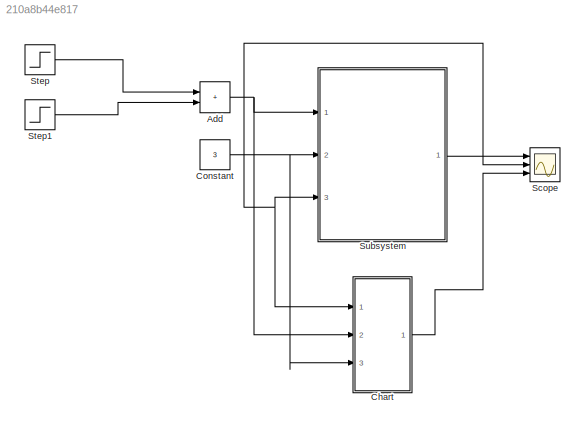
MODEL slx_210a8b44e817
KIND model
CONFIG AbsTol = auto
CONFIG EnableMultiTasking = off
CONFIG FixedStep = auto
CONFIG MaxStep = auto
CONFIG MinStep = auto
CONFIG RelTol = 1e-3
CONFIG SampleTimeConstraint = Unconstrained
CONFIG SolverName = VariableStepAuto
CONFIG StartTime = 0.0
CONFIG StopTime = 10.0
WORKSPACE source: external: MAT-File  (data not in archive)
BLOCK [Sum] Add
  IconShape = rectangular
  Ports = [2, 1]
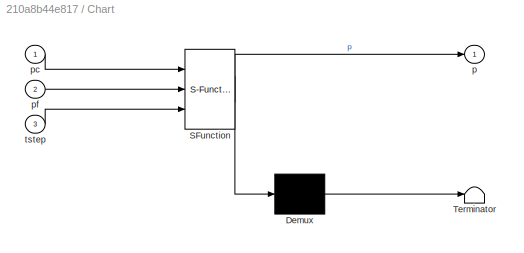
BLOCK [SubSystem] Chart
  ErrorFcn = Stateflow.Translate.translate
  PermitHierarchicalResolution = ExplicitOnly
  Ports = [3, 1]
  RequestExecContextInheritance = off
  SFBlockType = Chart
  TreatAsAtomicUnit = on
BLOCK [Demux] Chart/ Demux 
  Outputs = 1
  Ports = [1, 1]
BLOCK [S-Function] Chart/ SFunction 
  EnableBusSupport = on
  FunctionName = sf_sfun
  PortCounts = [3 2]
  Ports = [3, 2]
  SFcnIsStateOwnerBlock = off
  SFunctionDeploymentMode = off
  Tag = Stateflow S-Function 3
BLOCK [Terminator] Chart/ Terminator 
BLOCK [Outport] Chart/p
BLOCK [Inport] Chart/pc
BLOCK [Inport] Chart/pf
  Port = 2
BLOCK [Inport] Chart/tstep
  Port = 3
BLOCK [Constant] Constant
  Value = 3
BLOCK [Scope] Scope
  Floating = off
  NumInputPorts = 3
  Ports = [3]
  ScopeSpecificationString = Simulink.scopes.TimeScopeBlockCfg('CurrentConfiguration', extmgr.ConfigurationSet(extmgr.Configuration('Core','General UI',true),extmgr.Configuration('Core','Source UI',true),extmgr.Configuration('Sources','WiredSimulink',true),extmgr.Configuration('Visuals','Time Domain',true,'SerializedDisplays',{struct('MinYLimReal','-4.00000','MaxYLimReal','16.00000','YLabelReal','','MinYLimMag','0.00000','Max...<+1379ch>
BLOCK [Step] Step
  After = -8
  Before = 8
  Time = 5
BLOCK [Step] Step1
  After = 6
  Before = -5
  SampleTime = 0
  Time = 3
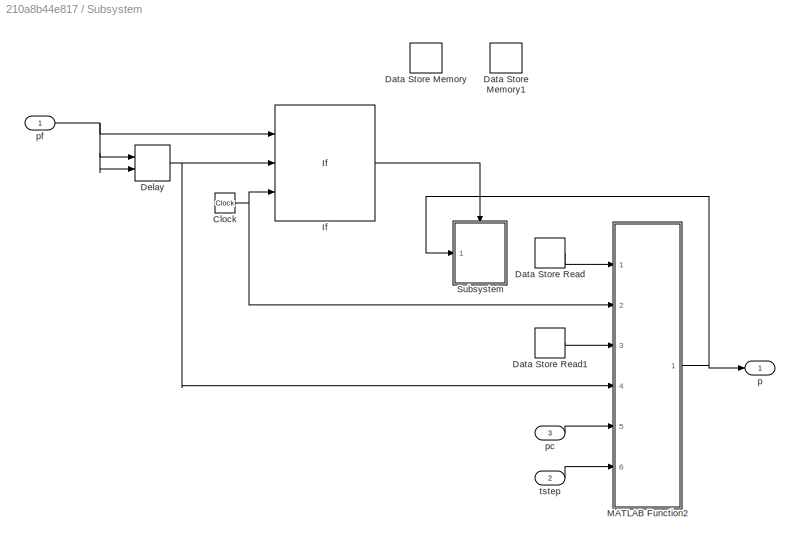
BLOCK [SubSystem] Subsystem
  Ports = [3, 1]
  RequestExecContextInheritance = off
BLOCK [Clock] Subsystem/Clock
BLOCK [DataStoreMemory] Subsystem/Data Store Memory
  DataStoreName = to
  ReadBeforeWriteMsg = warning
  ShowAdditionalParam = off
  WriteAfterReadMsg = warning
  WriteAfterWriteMsg = warning
BLOCK [DataStoreMemory] Subsystem/Data Store Memory1
  DataStoreName = po
  ReadBeforeWriteMsg = warning
  ShowAdditionalParam = off
  WriteAfterReadMsg = warning
  WriteAfterWriteMsg = warning
BLOCK [DataStoreRead] Subsystem/Data Store Read
  DataStoreName = to
  IndexOptions = Index vector (dialog)
  Indices = 1
  OutputSizes = 1
  Ports = [0, 1]
BLOCK [DataStoreRead] Subsystem/Data Store Read1
  DataStoreName = po
  IndexOptions = Index vector (dialog)
  Indices = 1
  OutputSizes = 1
  Ports = [0, 1]
BLOCK [Delay] Subsystem/Delay
  DelayLength = 1
  InitialConditionSource = Input port
  InputPortMap = u0,p4
  Ports = [2, 1]
BLOCK [If] Subsystem/If
  IfExpression = u1 ~= u2 | u3<.1
  NumInputs = 3
  Ports = [3, 1]
  ShowElse = off
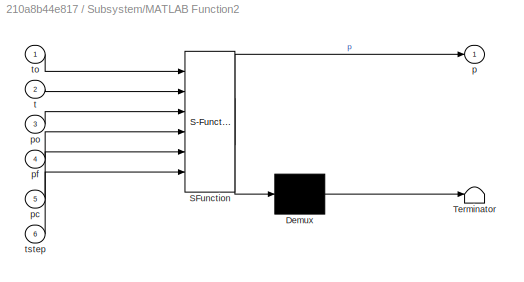
BLOCK [SubSystem] Subsystem/MATLAB Function2
  ErrorFcn = Stateflow.Translate.translate
  PermitHierarchicalResolution = ExplicitOnly
  Ports = [6, 1]
  RequestExecContextInheritance = off
  SFBlockType = MATLAB Function
  TreatAsAtomicUnit = on
BLOCK [Demux] Subsystem/MATLAB Function2/ Demux 
  Outputs = 1
  Ports = [1, 1]
BLOCK [S-Function] Subsystem/MATLAB Function2/ SFunction 
  EnableBusSupport = on
  FunctionName = sf_sfun
  PortCounts = [6 2]
  Ports = [6, 2]
  SFcnIsStateOwnerBlock = off
  SFunctionDeploymentMode = off
  Tag = Stateflow S-Function 7
BLOCK [Terminator] Subsystem/MATLAB Function2/ Terminator 
BLOCK [Outport] Subsystem/MATLAB Function2/p
BLOCK [Inport] Subsystem/MATLAB Function2/pc
  Port = 5
BLOCK [Inport] Subsystem/MATLAB Function2/pf
  Port = 4
BLOCK [Inport] Subsystem/MATLAB Function2/po
  Port = 3
BLOCK [Inport] Subsystem/MATLAB Function2/t
  Port = 2
BLOCK [Inport] Subsystem/MATLAB Function2/to
BLOCK [Inport] Subsystem/MATLAB Function2/tstep
  Port = 6
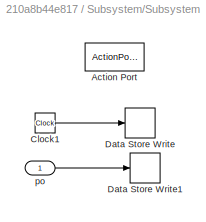
BLOCK [SubSystem] Subsystem/Subsystem
  Ports = [1, 0, 0, 0, 0, 0, 0, 1]
  RequestExecContextInheritance = off
BLOCK [ActionPort] Subsystem/Subsystem/Action Port
  ActionPortLabel = if(u1 ~= u2 | u3<.1)
BLOCK [Clock] Subsystem/Subsystem/Clock1
BLOCK [DataStoreWrite] Subsystem/Subsystem/Data Store Write
  DataStoreName = to
  IndexOptions = Index vector (dialog)
  Indices = 1
  OutputSizes = 1
  Ports = [1]
BLOCK [DataStoreWrite] Subsystem/Subsystem/Data Store Write1
  DataStoreName = po
  IndexOptions = Index vector (dialog)
  Indices = 1
  OutputSizes = 1
  Ports = [1]
BLOCK [Inport] Subsystem/Subsystem/po
BLOCK [Outport] Subsystem/p
BLOCK [Inport] Subsystem/pc
  Port = 3
BLOCK [Inport] Subsystem/pf
BLOCK [Inport] Subsystem/tstep
  Port = 2
NET Add:1 -> Chart:1, Chart:2, Scope:2, Subsystem:1, Subsystem:3
LINE Chart:1 -> Scope:3
NET Constant:1 -> Chart:3, Subsystem:2
LINE Step1:1 -> Add:2
LINE Step:1 -> Add:1
NET Subsystem/Clock:1 -> Subsystem/If:3, Subsystem/MATLAB Function2:2
LINE Subsystem/Data Store Read1:1 -> Subsystem/MATLAB Function2:3
LINE Subsystem/Data Store Read:1 -> Subsystem/MATLAB Function2:1
NET Subsystem/Delay:1 -> Subsystem/If:2, Subsystem/MATLAB Function2:4
LINE Subsystem/If:1 -> Subsystem/Subsystem:ifaction
NET Subsystem/MATLAB Function2:1 -> Subsystem/Subsystem:1, Subsystem/p:1
LINE Subsystem/Subsystem/Clock1:1 -> Subsystem/Subsystem/Data Store Write:1
LINE Subsystem/Subsystem/po:1 -> Subsystem/Subsystem/Data Store Write1:1
LINE Subsystem/pc:1 -> Subsystem/MATLAB Function2:5
NET Subsystem/pf:1 -> Subsystem/Delay:1, Subsystem/Delay:2, Subsystem/If:1
LINE Subsystem/tstep:1 -> Subsystem/MATLAB Function2:6
LINE Subsystem:1 -> Scope:1
note: NET lines group one-source signal fan-out (src -> all destinations, sorted); 1:1 wires keep LINE
CHART Chart states=2 transitions=4
  STATE_LABEL 'Ramp\nentry:\nto = t\nptemp = pf;\npo = p;\nslope = (pf - po)/tstep\nduring:\np = po + slope*(t-to);\n'
  STATE_LABEL 'Ideal'
CHART Subsystem/MATLAB Function2 states=1 transitions=1
  STATE_LABEL 'eML_blk_kernel()'
  STATE_LABEL 'SCRIPT:\nfunction p = ramp(to,t,po,pf,pc, tstep)\n    slope = (pf - po)/tstep;\n    p = po + slope*(t-to);\n    if((p > pf&& slope>0) || (p < pf && slope<0))\n        p = pf;\n    end\n    if(t==0)\n        p = pc;\n    end\n'
CHART  states=0 transitions=0
CHART  states=0 transitions=0
